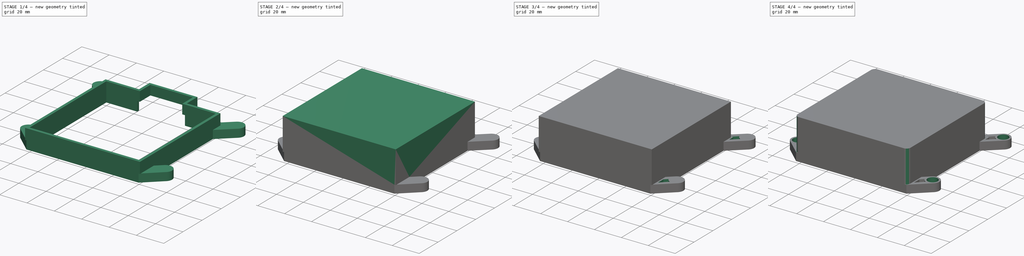
[diagram: build sequence overview — one tinted view per stage of 4, left to right]
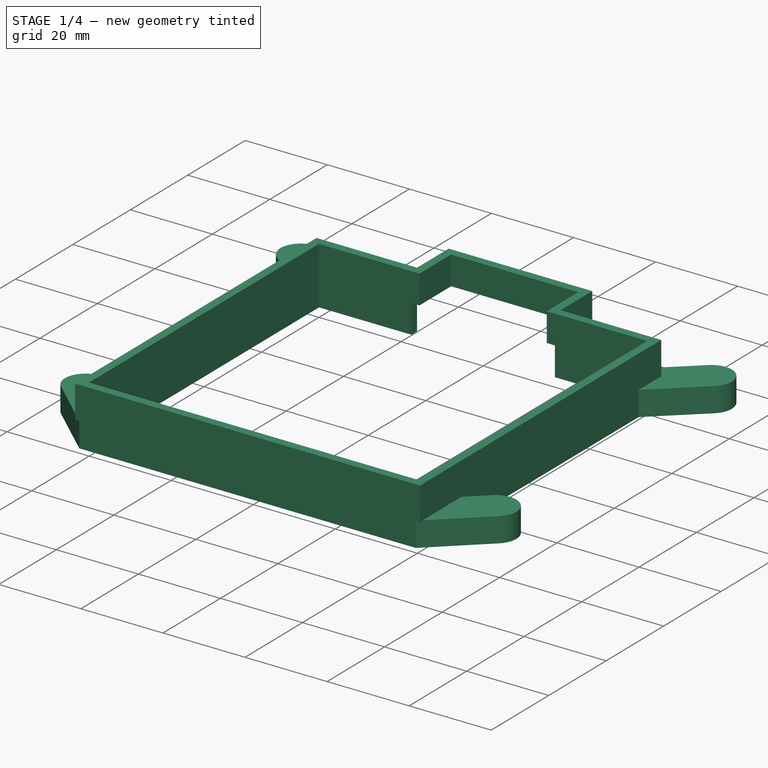
[diagram: stage 1 of 4 — iso view after this stage's code; geometry added in this stage tinted green]
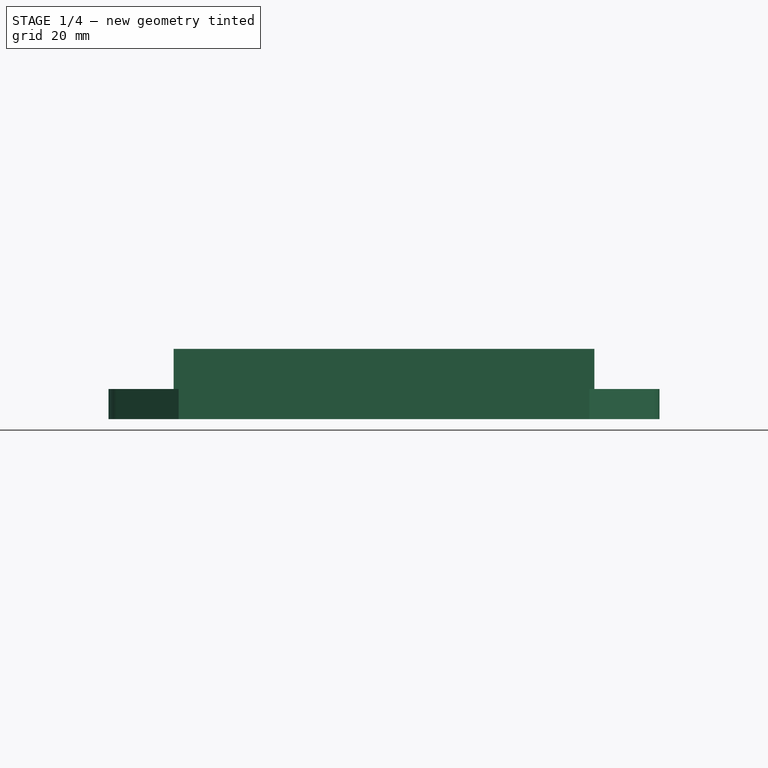
[diagram: stage 1 of 4 — front view after this stage's code; geometry added in this stage tinted green]
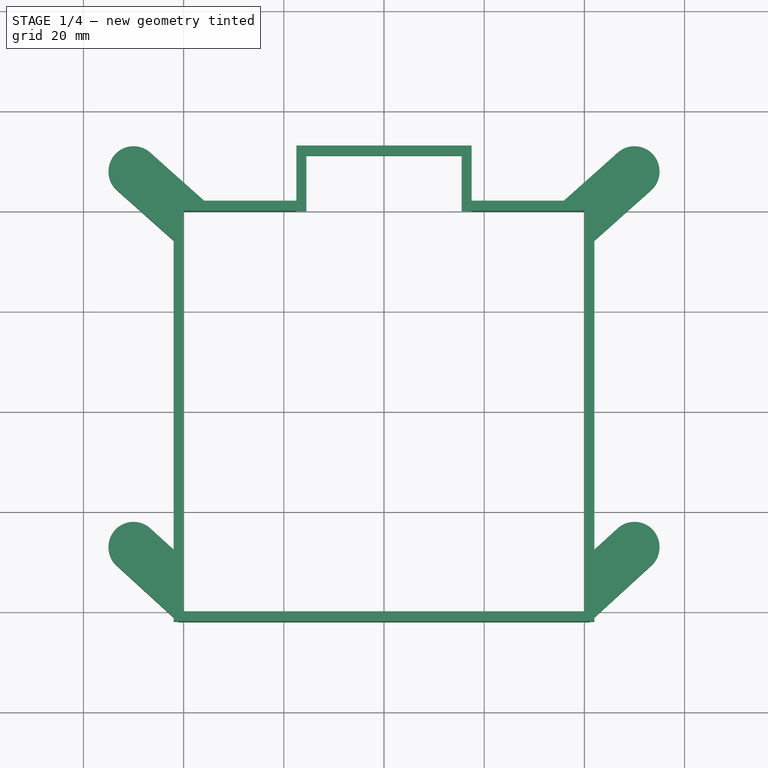
[diagram: stage 1 of 4 — top view after this stage's code; geometry added in this stage tinted green]
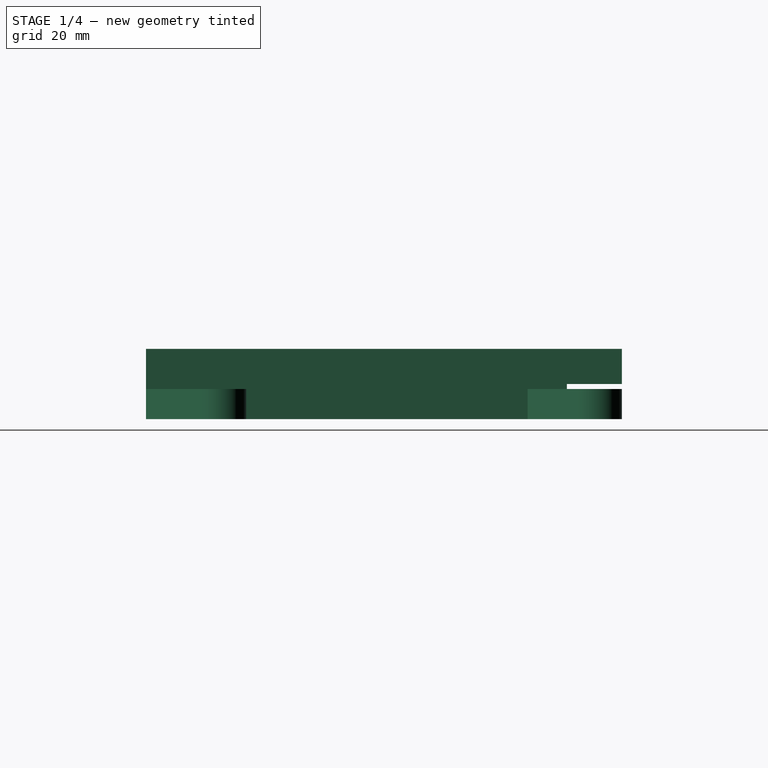
[diagram: stage 1 of 4 — right view after this stage's code; geometry added in this stage tinted green]
FCSTD DOCUMENT  (FreeCAD 1.1R44227 +322 (Git))
Label: cover_v2
License: All rights reserved
LicenseURL: https://en.wikipedia.org/wiki/All_rights_reserved
objects: Sketcher::SketchObject×10, PartDesign::Pad×6, PartDesign::Pocket×3, PartDesign::Hole×1, App::Point×1, PartDesign::Fillet×1, PartDesign::Body×1
note: 54 computed .brp shape members not serialized (recipe doc carries the construction recipe); baked Part::Feature solids carry a one-line shape summary decoded from their .brp

FEATURE [Sketcher::SketchObject] Sketch112
  ArcFitTolerance = 0
  AttachmentSupport = -> [XY_Plane]
  ExternalTypes = [0]
  FullyConstrained = true
  MakeInternals = false
  MapMode = 5
  sketch-geometry (30):
    g0: LineSegment [constr] StartX=-40 StartY=40 StartZ=0 EndX=40 EndY=40 EndZ=0
    g1: LineSegment StartX=-40 StartY=40 StartZ=0 EndX=-40 EndY=-40 EndZ=0
    g2: LineSegment StartX=-40 StartY=-40 StartZ=0 EndX=40 EndY=-40 EndZ=0
    g3: LineSegment StartX=40 StartY=40 StartZ=0 EndX=40 EndY=-40 EndZ=0
    g4: LineSegment [constr] StartX=-35.7645 StartY=42 StartZ=0 EndX=35.7645 EndY=42 EndZ=0
    g5: LineSegment StartX=42 StartY=34.1618 StartZ=0 EndX=42 EndY=-27.5382 EndZ=0
    g6: LineSegment StartX=41 StartY=-42 StartZ=0 EndX=-41 EndY=-42 EndZ=0
    g7: LineSegment StartX=-42 StartY=-27.5382 StartZ=0 EndX=-42 EndY=34.1618 EndZ=0
    g8: GeomPoint [constr] X=50 Y=48 Z=0
    g9: GeomPoint [constr] X=-50 Y=48 Z=0
    g10: GeomPoint [constr] X=-50 Y=-27 Z=0
    g11: GeomPoint [constr] X=50 Y=-27 Z=0
    g12: ArcOfCircle CenterX=50 CenterY=48 CenterZ=0 NormalX=0 NormalY=0 NormalZ=1 AngleXU=0 Radius=5 StartAngle=5.44087 EndAngle=8.58246
    g13: ArcOfCircle CenterX=-50 CenterY=48 CenterZ=0 NormalX=0 NormalY=0 NormalZ=1 AngleXU=0 Radius=5 StartAngle=0.842315 EndAngle=3.98391
    g14: ArcOfCircle CenterX=-50 CenterY=-27 CenterZ=0 NormalX=0 NormalY=0 NormalZ=1 AngleXU=0 Radius=5 StartAngle=0.830293 EndAngle=3.97189
    g15: ArcOfCircle CenterX=50 CenterY=-27 CenterZ=0 NormalX=0 NormalY=0 NormalZ=1 AngleXU=0 Radius=5 StartAngle=5.45289 EndAngle=8.59448
    g16: LineSegment StartX=-53.3733 StartY=-30.6906 StartZ=0 EndX=-41 EndY=-42 EndZ=0
    g17: LineSegment StartX=41 StartY=-42 StartZ=0 EndX=53.3733 EndY=-30.6906 EndZ=0
    g18: LineSegment StartX=46.6713 StartY=51.7309 StartZ=0 EndX=35.7645 EndY=42 EndZ=0
    g19: LineSegment StartX=-35.7645 StartY=42 StartZ=0 EndX=-46.6713 EndY=51.7309 EndZ=0
    g20: LineSegment StartX=42 StartY=34.1618 StartZ=0 EndX=53.3287 EndY=44.2691 EndZ=0
    g21: LineSegment StartX=-42 StartY=34.1618 StartZ=0 EndX=-53.3287 EndY=44.2691 EndZ=0
    g22: LineSegment StartX=-46.6267 StartY=-23.3094 StartZ=0 EndX=-42 EndY=-27.5382 EndZ=0
    g23: LineSegment StartX=46.6267 StartY=-23.3094 StartZ=0 EndX=42 EndY=-27.5382 EndZ=0
    g24: LineSegment StartX=35.7645 StartY=42 StartZ=0 EndX=17.5 EndY=42 EndZ=0
    g25: LineSegment StartX=40 StartY=40 StartZ=0 EndX=17.5 EndY=40 EndZ=0
    g26: LineSegment StartX=-40 StartY=40 StartZ=0 EndX=-17.5 EndY=40 EndZ=0
    g27: LineSegment StartX=-35.7645 StartY=42 StartZ=0 EndX=-17.5 EndY=42 EndZ=0
    g28: LineSegment StartX=-17.5 StartY=42 StartZ=0 EndX=-17.5 EndY=40 EndZ=0
    g29: LineSegment StartX=17.5 StartY=42 StartZ=0 EndX=17.5 EndY=40 EndZ=0
  constraints (75):
    c: Horizontal(g0)
    c: DistanceX(g0,g0) = 80
    c: Coincident(g1,g0)
    c: Vertical(g1)
    c: DistanceY(g1,g1) = 80
    c: Distance(g-1,g0) = 40
    c: Distance(g-1,g1) = 40
    c: Coincident(g2,g1)
    c: Horizontal(g2)
    c: Coincident(g3,g0)
    c: Coincident(g3,g2)
    c: Vertical(g3)
    c: Horizontal(g4)
    c: Vertical(g5)
    c: Vertical(g7)
    c: DistanceY(g6,g4) = 84
    c: Distance(g4,g0) = 2
    c: DistanceX(g-2,g11) = 50
    c: DistanceY(g-1,g10) = -27
    c: DistanceX(g-2,g10) = -50
    c: DistanceY(g-1,g9) = 48
    c: DistanceX(g-2,g9) = -50
    c: DistanceY(g-1,g8) = 48
    c: DistanceX(g-2,g8) = 50
    c: Coincident(g12,g8)
    c: Diameter(g12) = 10
    c: DistanceY(g-1,g11) = -27
    c: Coincident(g13,g9)
    c: Coincident(g14,g10)
    c: Coincident(g15,g11)
    c: Equal(g12,g13)
    c: Equal(g13,g14)
    c: Equal(g14,g15)
    c: Coincident(g16,g6)
    c: Coincident(g17,g6)
    c: Coincident(g18,g4)
    c: Coincident(g19,g4)
    c: Parallel(g18,g20)
    c: Parallel(g21,g19)
    c: Parallel(g22,g16)
    c: Parallel(g23,g17)
    c: Coincident(g7,g21)
    c: Coincident(g5,g20)
    c: Coincident(g5,g23)
    c: Coincident(g7,g22)
    c: DistanceX(g6,g6) = 82
    c: Distance(g-1,g5) = 42
    c: DistanceY(g5,g5) = 61.7
    c: Distance(g-1,g7) = 42
    c: Tangent(g13,g21) = 1.5708
    c: Tangent(g13,g19) = -1.5708
    c: Tangent(g12,g18) = -1.5708
    c: Tangent(g12,g20) = -1.5708
    c: Tangent(g15,g23) = -1.5708
    c: Tangent(g15,g17) = -1.5708
    c: Tangent(g14,g16) = -1.5708
    c: Tangent(g14,g22) = 1.5708
    c: Coincident(g24,g4)
    c: PointOnObject(g24,g4)
    c: Coincident(g25,g0)
    c: PointOnObject(g25,g0)
    c: Coincident(g26,g0)
    c: PointOnObject(g26,g0)
    c: Coincident(g27,g4)
    c: PointOnObject(g27,g4)
    c: Distance(g7,g7) = 61.7
    c: Coincident(g28,g27)
    c: Coincident(g28,g26)
    c: Vertical(g28)
    c: Distance(g27,g-2) = 17.5
    c: Coincident(g29,g24)
    c: Coincident(g29,g25)
    c: Vertical(g29)
    c: Distance(g24,g-2) = 17.5
    c: Symmetric(g6,g6,g-2)
FEATURE [PartDesign::Pad] Pad
  Direction = (0,0,1)
  Length = 6
  Length2 = 10
  Profile = -> Sketch112
  ReferenceAxis = -> Sketch112 [N_Axis]
  Refine = true
  SideType = 0
  Suppressed = false
  Type = 0
  Type2 = 0
FEATURE [Sketcher::SketchObject] Sketch113
  ArcFitTolerance = 0
  AttachmentSupport = -> [Pad]
  ExternalTypes = [0]
  FullyConstrained = true
  MakeInternals = false
  MapMode = 5
  Placement = pos=(0,0,6) rot=(0,0,1;0rad)
  sketch-geometry (12):
    g0: LineSegment StartX=-40 StartY=40 StartZ=0 EndX=-40 EndY=-40 EndZ=0
    g1: LineSegment StartX=-40 StartY=-40 StartZ=0 EndX=40 EndY=-40 EndZ=0
    g2: LineSegment StartX=40 StartY=40 StartZ=0 EndX=40 EndY=-40 EndZ=0
    g3: LineSegment StartX=42 StartY=42 StartZ=0 EndX=42 EndY=-42 EndZ=0
    g4: LineSegment StartX=42 StartY=-42 StartZ=0 EndX=-42 EndY=-42 EndZ=0
    g5: LineSegment StartX=-42 StartY=-42 StartZ=0 EndX=-42 EndY=42 EndZ=0
    g6: LineSegment StartX=-42 StartY=42 StartZ=0 EndX=-17.5 EndY=42 EndZ=0
    g7: LineSegment StartX=17.5 StartY=42 StartZ=0 EndX=17.5 EndY=40 EndZ=0
    g8: LineSegment StartX=-17.5 StartY=42 StartZ=0 EndX=-17.5 EndY=40 EndZ=0
    g9: LineSegment StartX=-17.5 StartY=40 StartZ=0 EndX=-40 EndY=40 EndZ=0
    g10: LineSegment StartX=17.5 StartY=42 StartZ=0 EndX=42 EndY=42 EndZ=0
    g11: LineSegment StartX=17.5 StartY=40 StartZ=0 EndX=40 EndY=40 EndZ=0
  constraints (36):
    c: DistanceX(g0,g2) = 80
    c: Vertical(g0)
    c: DistanceY(g0,g0) = 80
    c: Coincident(g1,g0)
    c: Horizontal(g1)
    c: Coincident(g2,g1)
    c: Vertical(g2)
    c: Vertical(g3)
    c: Horizontal(g4)
    c: Vertical(g5)
    c: Distance(g4,g2) = 2
    c: Coincident(g3,g10)
    c: Coincident(g3,g4)
    c: Coincident(g5,g6)
    c: Coincident(g4,g5)
    c: Coincident(g9,g0)
    c: Distance(g-1,g1) = 40
    c: Distance(g1,g4) = 2
    c: Distance(g0,g6) = 2
    c: Horizontal(g6)
    c: PointOnObject(g7,g10)
    c: Vertical(g7)
    c: PointOnObject(g8,g9)
    c: Vertical(g8)
    c: PointOnObject(g9,g8)
    c: Coincident(g6,g8)
    c: PointOnObject(g10,g7)
    c: Distance(g6,g-2) = 17.5
    c: Distance(g7,g-2) = 17.5
    c: Coincident(g11,g7)
    c: Coincident(g11,g2)
    c: Horizontal(g11)
    c: Horizontal(g10)
    c: Symmetric(g5,g3,g-2)
    c: Symmetric(g0,g2,g-2)
    c: Horizontal(g9)
FEATURE [PartDesign::Pad] Pad001
  BaseFeature = -> Pad
  Direction = (0,0,1)
  Length = 1
  Length2 = 10
  Profile = -> Sketch113
  ReferenceAxis = -> Sketch113 [N_Axis]
  Refine = true
  SideType = 0
  Suppressed = false
  Type = 0
  Type2 = 0
FEATURE [Sketcher::SketchObject] Sketch114
  ArcFitTolerance = 0
  AttachmentSupport = -> [Pad001]
  ExternalTypes = [0]
  FullyConstrained = true
  MakeInternals = false
  MapMode = 5
  Placement = pos=(0,0,7) rot=(0,0,1;0rad)
  sketch-geometry (18):
    g0: LineSegment [constr] StartX=-40 StartY=40 StartZ=0 EndX=40 EndY=40 EndZ=0
    g1: LineSegment StartX=-40 StartY=40 StartZ=0 EndX=-40 EndY=-40 EndZ=0
    g2: LineSegment StartX=-40 StartY=-40 StartZ=0 EndX=40 EndY=-40 EndZ=0
    g3: LineSegment StartX=40 StartY=40 StartZ=0 EndX=40 EndY=-40 EndZ=0
    g4: LineSegment [constr] StartX=-42 StartY=42 StartZ=0 EndX=42 EndY=42 EndZ=0
    g5: LineSegment StartX=42 StartY=42 StartZ=0 EndX=42 EndY=-42 EndZ=0
    g6: LineSegment StartX=42 StartY=-42 StartZ=0 EndX=-42 EndY=-42 EndZ=0
    g7: LineSegment StartX=-42 StartY=-42 StartZ=0 EndX=-42 EndY=42 EndZ=0
    g8: LineSegment StartX=42 StartY=42 StartZ=0 EndX=17.5 EndY=42 EndZ=0
    g9: LineSegment StartX=17.5 StartY=53 StartZ=0 EndX=17.5 EndY=42 EndZ=0
    g10: LineSegment StartX=40 StartY=40 StartZ=0 EndX=15.5 EndY=40 EndZ=0
    g11: LineSegment StartX=15.5 StartY=40 StartZ=0 EndX=15.5 EndY=51 EndZ=0
    g12: LineSegment StartX=15.5 StartY=51 StartZ=0 EndX=-15.5 EndY=51 EndZ=0
    g13: LineSegment StartX=17.5 StartY=53 StartZ=0 EndX=-17.5 EndY=53 EndZ=0
    g14: LineSegment StartX=-40 StartY=40 StartZ=0 EndX=-15.5 EndY=40 EndZ=0
    g15: LineSegment StartX=-15.5 StartY=40 StartZ=0 EndX=-15.5 EndY=51 EndZ=0
    g16: LineSegment StartX=-17.5 StartY=53 StartZ=0 EndX=-17.5 EndY=42 EndZ=0
    g17: LineSegment StartX=-42 StartY=42 StartZ=0 EndX=-17.5 EndY=42 EndZ=0
  constraints (51):
    c: Horizontal(g0)
    c: DistanceX(g0,g0) = 80
    c: Coincident(g1,g0)
    c: Vertical(g1)
    c: DistanceY(g1,g1) = 80
    c: Distance(g-1,g0) = 40
    c: Distance(g-1,g1) = 40
    c: Coincident(g2,g1)
    c: Horizontal(g2)
    c: Coincident(g3,g0)
    c: Coincident(g3,g2)
    c: Vertical(g3)
    c: Horizontal(g4)
    c: Vertical(g5)
    c: Horizontal(g6)
    c: Vertical(g7)
    c: DistanceY(g6,g4) = 84
    c: Distance(g6,g3) = 2
    c: Distance(g4,g0) = 2
    c: Distance(g-1,g7) = 42
    c: Coincident(g8,g4)
    c: PointOnObject(g8,g4)
    c: Vertical(g9)
    c: Distance(g-1,g9) = 17.5
    c: Distance(g9,g4) = 11
    c: Coincident(g10,g0)
    c: PointOnObject(g10,g0)
    c: DistanceX(g10,g10) = 24.5
    c: Coincident(g11,g10)
    c: Vertical(g11)
    c: Coincident(g12,g11)
    c: Horizontal(g12)
    c: Coincident(g13,g9)
    c: Horizontal(g13)
    c: Coincident(g14,g0)
    c: PointOnObject(g14,g0)
    c: Coincident(g15,g14)
    c: Coincident(g15,g12)
    c: Vertical(g15)
    c: DistanceY(g15,g15) = 11
    c: DistanceX(g14,g14) = 24.5
    c: Coincident(g16,g13)
    c: Vertical(g16)
    c: Coincident(g17,g4)
    c: Symmetric(g16,g9,g-2)
    c: Coincident(g4,g5)
    c: Coincident(g4,g7)
    c: Coincident(g6,g7)
    c: Coincident(g5,g6)
    c: Coincident(g17,g16)
    c: Coincident(g9,g8)
FEATURE [PartDesign::Pad] Pad002
  BaseFeature = -> Pad001
  Direction = (0,0,1)
  Length = 7
  Length2 = 10
  Profile = -> Sketch114
  ReferenceAxis = -> Sketch114 [N_Axis]
  Refine = true
  SideType = 0
  Suppressed = false
  Type = 0
  Type2 = 0
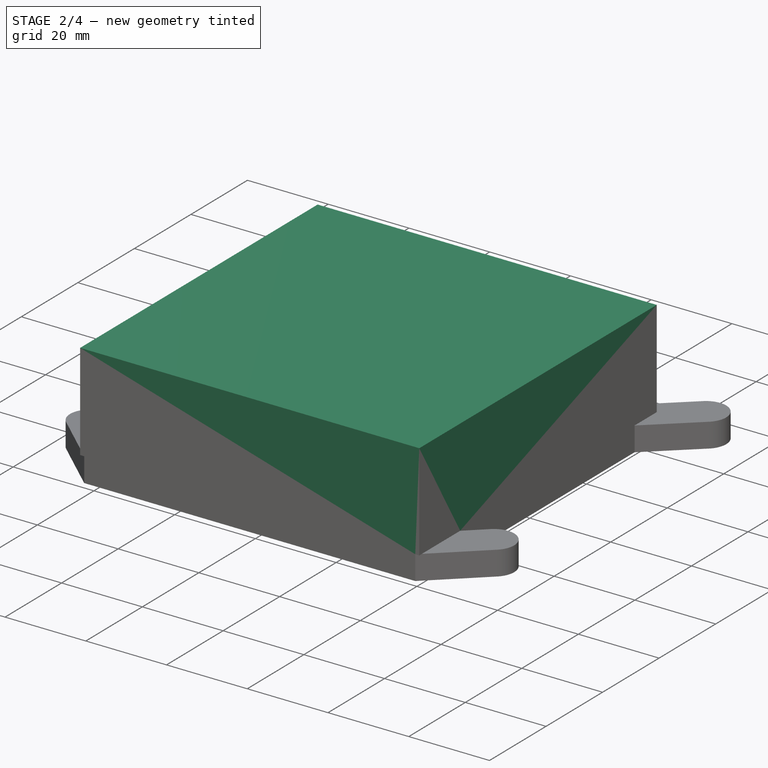
[diagram: stage 2 of 4 — iso view after this stage's code; geometry added in this stage tinted green]
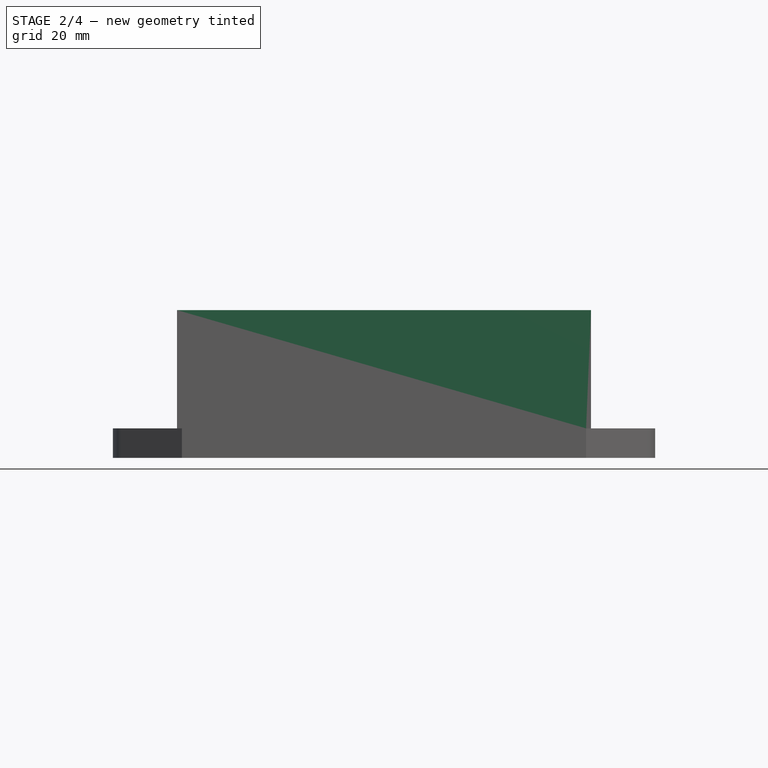
[diagram: stage 2 of 4 — front view after this stage's code; geometry added in this stage tinted green]
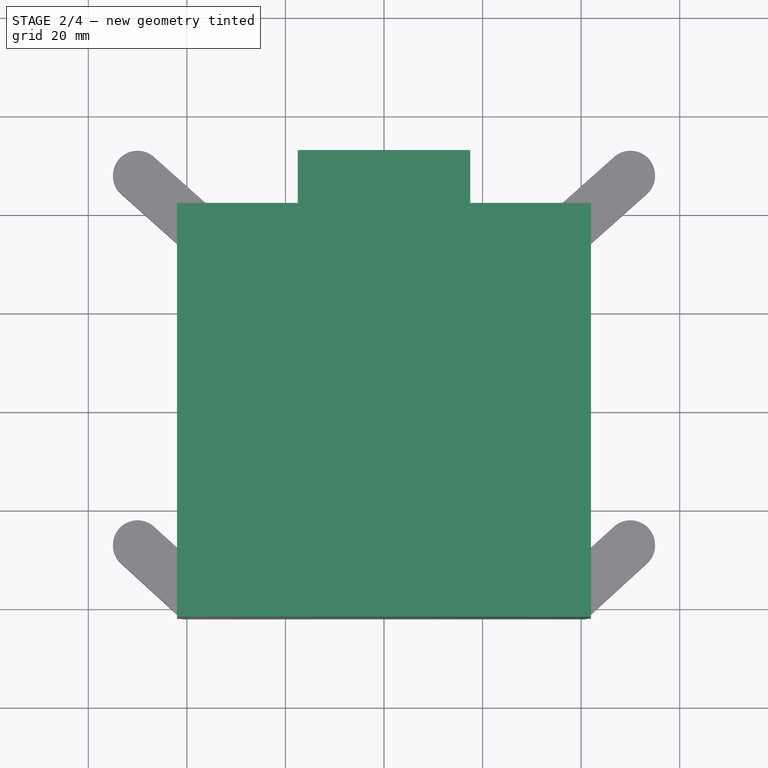
[diagram: stage 2 of 4 — top view after this stage's code; geometry added in this stage tinted green]
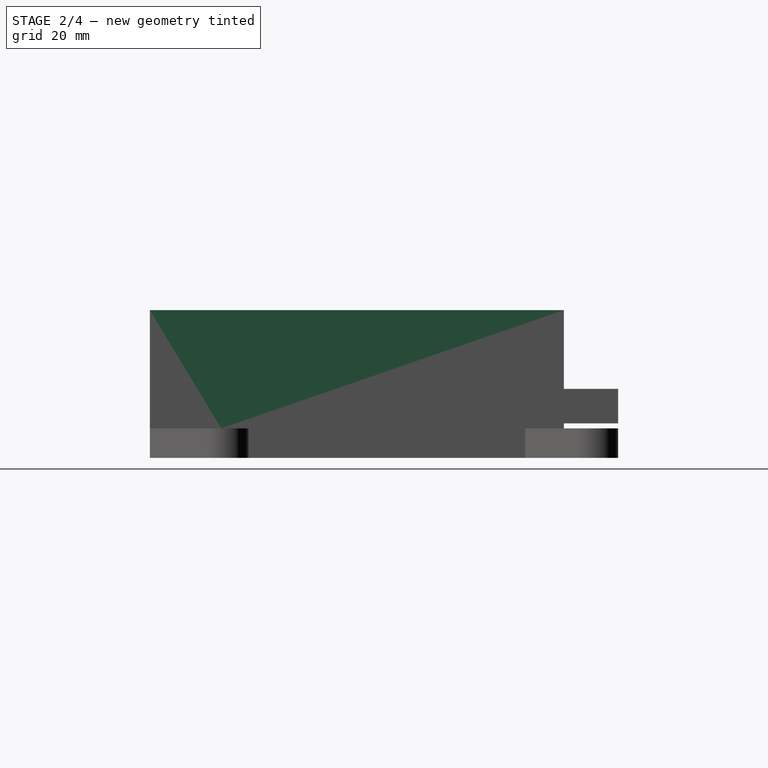
[diagram: stage 2 of 4 — right view after this stage's code; geometry added in this stage tinted green]
FEATURE [Sketcher::SketchObject] Sketch115
  ArcFitTolerance = 1e-06
  AttachmentSupport = -> [Pad002]
  ExternalTypes = [0]
  FullyConstrained = true
  MakeInternals = false
  MapMode = 5
  Placement = pos=(0,0,14) rot=(0,0,1;0rad)
  sketch-geometry (4):
    g0: LineSegment StartX=-17.5 StartY=53 StartZ=0 EndX=-17.5 EndY=40 EndZ=0
    g1: LineSegment StartX=-17.5 StartY=40 StartZ=0 EndX=17.5 EndY=40 EndZ=0
    g2: LineSegment StartX=17.5 StartY=40 StartZ=0 EndX=17.5 EndY=53 EndZ=0
    g3: LineSegment StartX=17.5 StartY=53 StartZ=0 EndX=-17.5 EndY=53 EndZ=0
  constraints (12):
    c: Coincident(g0,g1)
    c: Coincident(g1,g2)
    c: Coincident(g2,g3)
    c: Coincident(g3,g0)
    c: Vertical(g0)
    c: Vertical(g2)
    c: Horizontal(g1)
    c: Horizontal(g3)
    c: Distance(g-2,g0) = 17.5
    c: Distance(g-1,g1) = 40
    c: DistanceX(g1,g1) = 35
    c: DistanceY(g2,g2) = 13
FEATURE [PartDesign::Pad] Pad003
  BaseFeature = -> Pad002
  Direction = (0,0,1)
  Length = 2
  Length2 = 10
  Profile = -> Sketch115
  ReferenceAxis = -> Sketch115 [N_Axis]
  Refine = true
  Reversed = true
  SideType = 0
  Suppressed = false
  Type = 0
  Type2 = 0
FEATURE [Sketcher::SketchObject] Sketch111
  ArcFitTolerance = 0
  AttachmentSupport = -> [Pad003]
  ExternalTypes = [0]
  FullyConstrained = true
  MakeInternals = false
  MapMode = 5
  Placement = pos=(0,0,14) rot=(0,0,1;0rad)
  sketch-geometry (8):
    g0: LineSegment StartX=-40 StartY=40 StartZ=0 EndX=-40 EndY=-40 EndZ=0
    g1: LineSegment StartX=-40 StartY=-40 StartZ=0 EndX=40 EndY=-40 EndZ=0
    g2: LineSegment StartX=40 StartY=40 StartZ=0 EndX=40 EndY=-40 EndZ=0
    g3: LineSegment StartX=42 StartY=42 StartZ=0 EndX=42 EndY=-42 EndZ=0
    g4: LineSegment StartX=42 StartY=-42 StartZ=0 EndX=-42 EndY=-42 EndZ=0
    g5: LineSegment StartX=-42 StartY=-42 StartZ=0 EndX=-42 EndY=42 EndZ=0
    g6: LineSegment StartX=40 StartY=40 StartZ=0 EndX=-40 EndY=40 EndZ=0
    g7: LineSegment StartX=-42 StartY=42 StartZ=0 EndX=42 EndY=42 EndZ=0
  constraints (24):
    c: DistanceX(g0,g2) = 80
    c: Vertical(g0)
    c: DistanceY(g0,g0) = 80
    c: Distance(g-1,g0) = 40
    c: Coincident(g1,g0)
    c: Horizontal(g1)
    c: Coincident(g2,g1)
    c: Vertical(g2)
    c: Vertical(g3)
    c: Horizontal(g4)
    c: Vertical(g5)
    c: Distance(g4,g2) = 2
    c: Coincident(g3,g7)
    c: Coincident(g3,g4)
    c: Coincident(g5,g7)
    c: Coincident(g4,g5)
    c: Coincident(g6,g0)
    c: Distance(g-1,g1) = 40
    c: Coincident(g2,g6)
    c: Horizontal(g6)
    c: Distance(g1,g4) = 2
    c: Distance(g0,g7) = 2
    c: Distance(g0,g5) = 2
    c: Horizontal(g7)
FEATURE [PartDesign::Pad] Pad004
  BaseFeature = -> Pad003
  Direction = (0,0,1)
  Length = 14
  Length2 = 10
  Profile = -> Sketch111
  ReferenceAxis = -> Sketch111 [N_Axis]
  Refine = true
  SideType = 0
  Suppressed = false
  Type = 0
  Type2 = 0
FEATURE [Sketcher::SketchObject] Sketch116
  ArcFitTolerance = 0
  AttachmentSupport = -> [Pad004]
  ExternalTypes = [0]
  FullyConstrained = true
  MakeInternals = false
  MapMode = 5
  Placement = pos=(0,0,28) rot=(0,0,1;0rad)
  sketch-geometry (4):
    g0: LineSegment StartX=42 StartY=42 StartZ=0 EndX=42 EndY=-42 EndZ=0
    g1: LineSegment StartX=42 StartY=-42 StartZ=0 EndX=-42 EndY=-42 EndZ=0
    g2: LineSegment StartX=-42 StartY=-42 StartZ=0 EndX=-42 EndY=42 EndZ=0
    g3: LineSegment StartX=-42 StartY=42 StartZ=0 EndX=42 EndY=42 EndZ=0
  constraints (12):
    c: Vertical(g0)
    c: Horizontal(g1)
    c: Vertical(g2)
    c: Coincident(g0,g3)
    c: Coincident(g0,g1)
    c: Coincident(g2,g3)
    c: Coincident(g1,g2)
    c: Horizontal(g3)
    c: Distance(g-1,g3) = 42
    c: Distance(g-1,g2) = 42
    c: Distance(g0,g-2) = 42
    c: Distance(g0,g-1) = 42
FEATURE [PartDesign::Pad] Pad005
  BaseFeature = -> Pad004
  Direction = (0,0,1)
  Length = 2
  Length2 = 10
  Profile = -> Sketch116
  ReferenceAxis = -> Sketch116 [N_Axis]
  Refine = true
  SideType = 0
  Suppressed = false
  Type = 0
  Type2 = 0
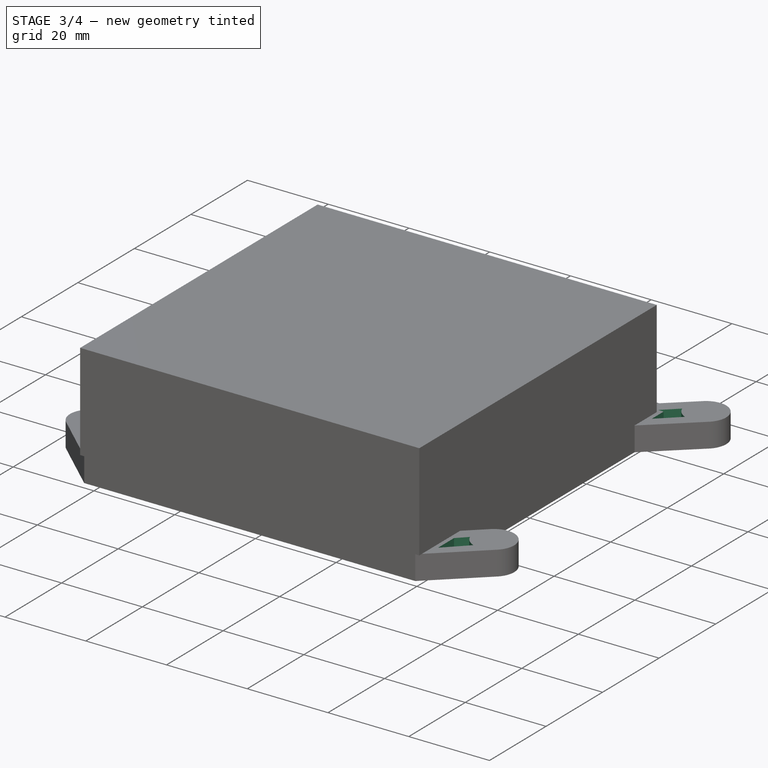
[diagram: stage 3 of 4 — iso view after this stage's code; geometry added in this stage tinted green]
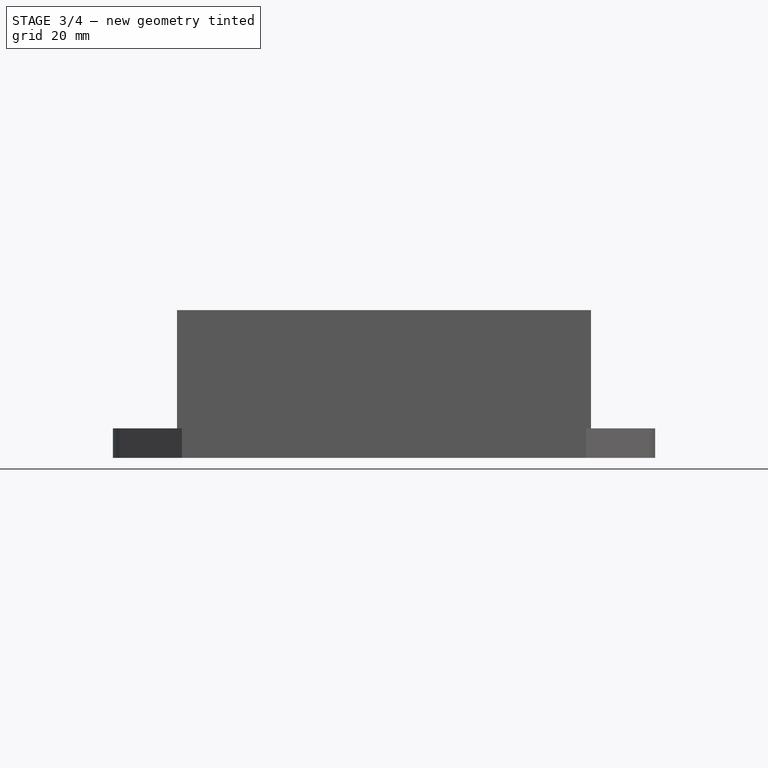
[diagram: stage 3 of 4 — front view after this stage's code; geometry added in this stage tinted green]
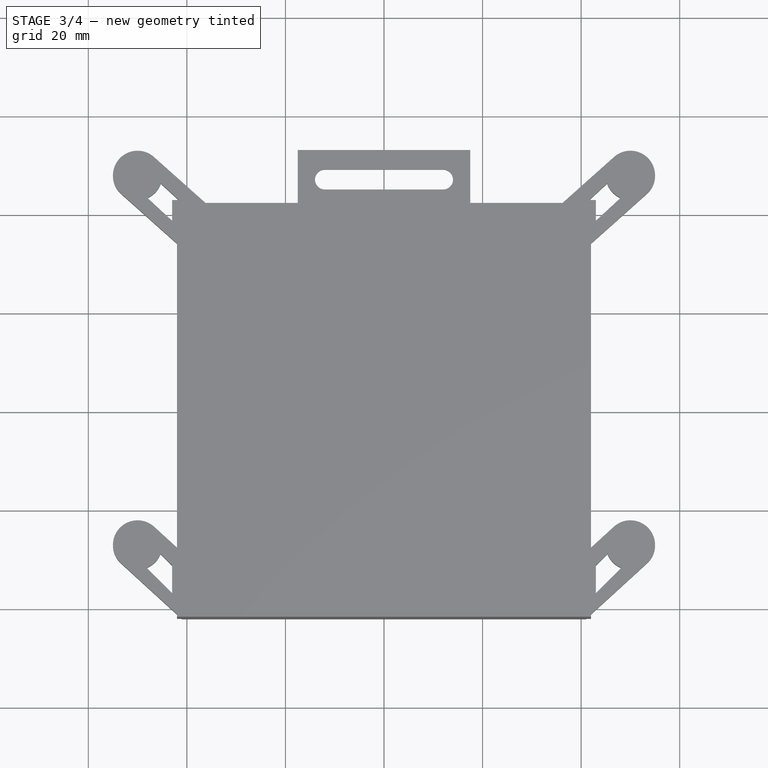
[diagram: stage 3 of 4 — top view after this stage's code; geometry added in this stage tinted green]
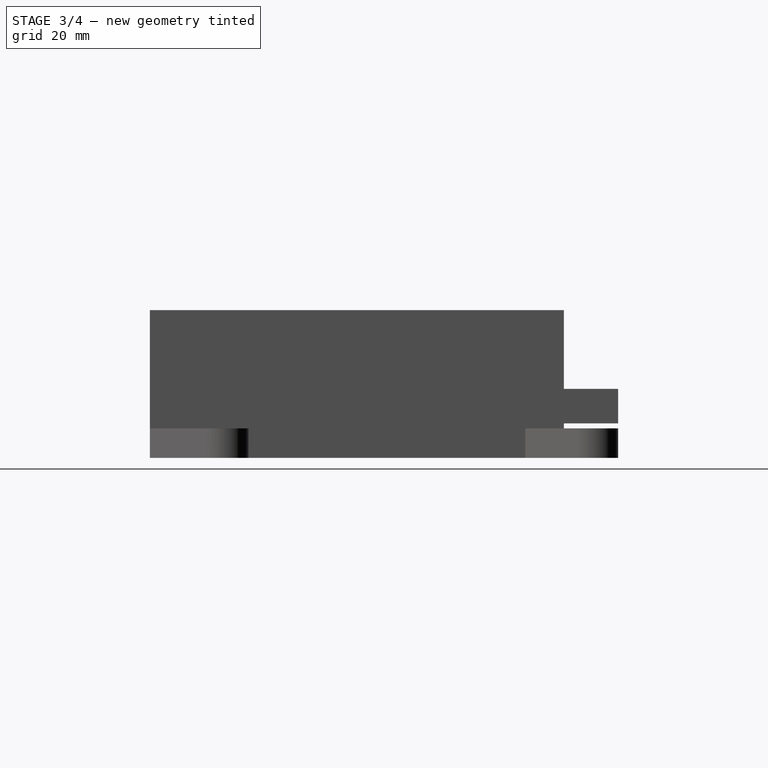
[diagram: stage 3 of 4 — right view after this stage's code; geometry added in this stage tinted green]
FEATURE [Sketcher::SketchObject] Sketch117
  ArcFitTolerance = 1e-06
  ExternalTypes = [0]
  FullyConstrained = true
  MakeInternals = false
  MapMode = 5
  Placement = pos=(0,0,12) rot=(1,0,0;3.14159rad)
  sketch-geometry (4):
    g0: ArcOfCircle CenterX=-12 CenterY=-47 CenterZ=0 NormalX=0 NormalY=0 NormalZ=1 AngleXU=0 Radius=2 StartAngle=1.5708 EndAngle=4.71239
    g1: ArcOfCircle CenterX=12 CenterY=-47 CenterZ=0 NormalX=0 NormalY=0 NormalZ=1 AngleXU=0 Radius=2 StartAngle=4.71239 EndAngle=7.85398
    g2: LineSegment StartX=-12 StartY=-45 StartZ=0 EndX=12 EndY=-45 EndZ=0
    g3: LineSegment StartX=-12 StartY=-49 StartZ=0 EndX=12 EndY=-49 EndZ=0
  constraints (9):
    c: Tangent(g0,g2) = 1.5708
    c: Tangent(g0,g3) = -1.5708
    c: Tangent(g1,g2) = 1.5708
    c: Tangent(g1,g3) = -1.5708
    c: Equal(g0,g1)
    c: DistanceX(g3,g3) = 24
    c: Symmetric(g0,g1,g-2)
    c: Radius(g0) = 2
    c: Distance(g0,g-1) = 47
FEATURE [PartDesign::Pocket] Pocket
  BaseFeature = -> Pad005
  Direction = (0,1e-16,1)
  Length = 5
  Length2 = 5
  Profile = -> Sketch117
  ReferenceAxis = -> Sketch117 [N_Axis]
  Refine = true
  SideType = 0
  Suppressed = false
  Type = 0
  Type2 = 0
FEATURE [Sketcher::SketchObject] Sketch119
  ArcFitTolerance = 0
  ExternalTypes = [0]
  FullyConstrained = true
  MakeInternals = false
  MapMode = 5
  sketch-geometry (58):
    g0: LineSegment [constr] StartX=-40 StartY=40 StartZ=0 EndX=40 EndY=40 EndZ=0
    g1: LineSegment [constr] StartX=-40 StartY=40 StartZ=0 EndX=-40 EndY=-40 EndZ=0
    g2: LineSegment [constr] StartX=-40 StartY=-40 StartZ=0 EndX=40 EndY=-40 EndZ=0
    g3: LineSegment [constr] StartX=40 StartY=40 StartZ=0 EndX=40 EndY=-40 EndZ=0
    g4: LineSegment [constr] StartX=-36.1406 StartY=42 StartZ=0 EndX=36.1406 EndY=42 EndZ=0
    g5: LineSegment [constr] StartX=42 StartY=33.7986 StartZ=0 EndX=42 EndY=-27.9014 EndZ=0
    g6: LineSegment [constr] StartX=42 StartY=-42 StartZ=0 EndX=-42 EndY=-42 EndZ=0
    g7: LineSegment [constr] StartX=-42 StartY=-27.9014 StartZ=0 EndX=-42 EndY=33.7986 EndZ=0
    g8: GeomPoint [constr] X=50 Y=48 Z=0
    g9: GeomPoint [constr] X=-50 Y=48 Z=0
    g10: GeomPoint [constr] X=-50 Y=-27 Z=0
    g11: GeomPoint [constr] X=50 Y=-27 Z=0
    g12: ArcOfCircle [constr] CenterX=50 CenterY=48 CenterZ=0 NormalX=0 NormalY=0 NormalZ=1 AngleXU=0 Radius=5 StartAngle=5.45839 EndAngle=8.59998
    g13: ArcOfCircle [constr] CenterX=-50 CenterY=48 CenterZ=0 NormalX=0 NormalY=0 NormalZ=1 AngleXU=0 Radius=5 StartAngle=0.824798 EndAngle=3.96639
    g14: ArcOfCircle [constr] CenterX=-50 CenterY=-27 CenterZ=0 NormalX=0 NormalY=0 NormalZ=1 AngleXU=0 Radius=5 StartAngle=0.78849 EndAngle=3.93008
    g15: ArcOfCircle [constr] CenterX=50 CenterY=-27 CenterZ=0 NormalX=0 NormalY=0 NormalZ=1 AngleXU=0 Radius=5 StartAngle=5.4947 EndAngle=8.63629
    g16: LineSegment [constr] StartX=-53.5246 StartY=-30.5464 StartZ=0 EndX=-42 EndY=-42 EndZ=0
    g17: LineSegment [constr] StartX=42 StartY=-42 StartZ=0 EndX=53.5246 EndY=-30.5464 EndZ=0
    g18: LineSegment [constr] StartX=46.6065 StartY=51.6721 StartZ=0 EndX=36.1406 EndY=42 EndZ=0
    g19: LineSegment [constr] StartX=-36.1406 StartY=42 StartZ=0 EndX=-46.6065 EndY=51.6721 EndZ=0
    g20: LineSegment [constr] StartX=42 StartY=33.7986 StartZ=0 EndX=53.3935 EndY=44.3279 EndZ=0
    g21: LineSegment [constr] StartX=-42 StartY=33.7986 StartZ=0 EndX=-53.3935 EndY=44.3279 EndZ=0
    g22: LineSegment [constr] StartX=-46.4754 StartY=-23.4536 StartZ=0 EndX=-42 EndY=-27.9014 EndZ=0
    g23: LineSegment [constr] StartX=46.4754 StartY=-23.4536 StartZ=0 EndX=42 EndY=-27.9014 EndZ=0
    g24: LineSegment [constr] StartX=36.1406 StartY=42 StartZ=0 EndX=17.5 EndY=42 EndZ=0
    g25: LineSegment [constr] StartX=40 StartY=40 StartZ=0 EndX=17.5 EndY=40 EndZ=0
    g26: LineSegment [constr] StartX=-40 StartY=40 StartZ=0 EndX=-17.5 EndY=40 EndZ=0
    g27: LineSegment [constr] StartX=-36.1406 StartY=42 StartZ=0 EndX=-17.5 EndY=42 EndZ=0
    g28: LineSegment [constr] StartX=-17.5 StartY=42 StartZ=0 EndX=-17.5 EndY=40 EndZ=0
    g29: LineSegment [constr] StartX=17.5 StartY=42 StartZ=0 EndX=17.5 EndY=40 EndZ=0
    g30: GeomPoint [constr] X=-50 Y=48 Z=0
    g31: GeomPoint [constr] X=-40 Y=40 Z=0
    g32: GeomPoint [constr] X=50 Y=48 Z=0
    g33: GeomPoint [constr] X=40 Y=40 Z=0
    g34: GeomPoint [constr] X=50 Y=-27 Z=0
    g35: LineSegment [constr] StartX=42 StartY=33.7986 StartZ=0 EndX=42 EndY=42 EndZ=0
    g36: LineSegment [constr] StartX=36.1406 StartY=42 StartZ=0 EndX=42 EndY=42 EndZ=0
    g37: LineSegment [constr] StartX=50 StartY=48 StartZ=0 EndX=42 EndY=40.6068 EndZ=0
    g38: LineSegment StartX=43 StartY=38.8077 StartZ=0 EndX=43 EndY=43 EndZ=0
    g39: LineSegment StartX=43 StartY=38.8077 StartZ=0 EndX=47.9919 EndY=43.421 EndZ=0
    g40: LineSegment StartX=43 StartY=43 StartZ=0 EndX=41.6428 EndY=43 EndZ=0
    g41: LineSegment StartX=41.6428 StartY=43 StartZ=0 EndX=45.2771 EndY=46.3586 EndZ=0
    g42: ArcOfCircle CenterX=50 CenterY=48 CenterZ=0 NormalX=0 NormalY=0 NormalZ=1 AngleXU=0 Radius=5 StartAngle=3.47607 EndAngle=4.29911
    g43: LineSegment StartX=-43 StartY=38.8077 StartZ=0 EndX=-43 EndY=43 EndZ=0
    g44: LineSegment StartX=-43 StartY=43 StartZ=0 EndX=-41.6428 EndY=43 EndZ=0
    g45: LineSegment StartX=-41.6428 StartY=43 StartZ=0 EndX=-45.2771 EndY=46.3586 EndZ=0
    g46: LineSegment StartX=-43 StartY=38.8077 StartZ=0 EndX=-47.9919 EndY=43.421 EndZ=0
    g47: ArcOfCircle CenterX=-50 CenterY=48 CenterZ=0 NormalX=0 NormalY=0 NormalZ=1 AngleXU=0 Radius=5 StartAngle=5.12567 EndAngle=5.9487
    g48: LineSegment StartX=-48.1595 StartY=-31.6489 StartZ=0 EndX=-43 EndY=-36.7766 EndZ=0
    g49: LineSegment StartX=-45.3398 StartY=-28.8118 StartZ=0 EndX=-43 EndY=-31.1371 EndZ=0
    g50: LineSegment StartX=-43 StartY=-31.1371 StartZ=0 EndX=-43 EndY=-36.7766 EndZ=0
    g51: LineSegment [constr] StartX=-42 StartY=-27.9014 StartZ=0 EndX=-42 EndY=-42 EndZ=0
    g52: ArcOfCircle CenterX=-50 CenterY=-27 CenterZ=0 NormalX=0 NormalY=0 NormalZ=1 AngleXU=0 Radius=5 StartAngle=5.08936 EndAngle=5.9124
    g53: LineSegment [constr] StartX=-50 StartY=-27 StartZ=0 EndX=-42 EndY=-34.9507 EndZ=0
    g54: LineSegment StartX=43 StartY=-31.1371 StartZ=0 EndX=43 EndY=-36.7766 EndZ=0
    g55: LineSegment StartX=43 StartY=-36.7766 StartZ=0 EndX=48.1595 EndY=-31.6489 EndZ=0
    g56: LineSegment StartX=43 StartY=-31.1371 StartZ=0 EndX=45.3398 EndY=-28.8118 EndZ=0
    g57: ArcOfCircle CenterX=50 CenterY=-27 CenterZ=0 NormalX=0 NormalY=0 NormalZ=1 AngleXU=0 Radius=5 StartAngle=3.51238 EndAngle=4.33542
  constraints (142):
    c: Horizontal(g0)
    c: DistanceX(g0,g0) = 80
    c: Coincident(g1,g0)
    c: Vertical(g1)
    c: DistanceY(g1,g1) = 80
    c: Distance(g-1,g0) = 40
    c: Distance(g-1,g1) = 40
    c: Coincident(g2,g1)
    c: Horizontal(g2)
    c: Coincident(g3,g0)
    c: Coincident(g3,g2)
    c: Vertical(g3)
    c: Horizontal(g4)
    c: Vertical(g5)
    c: Horizontal(g6)
    c: Vertical(g7)
    c: DistanceY(g6,g4) = 84
    c: Distance(g6,g3) = 2
    c: Distance(g4,g0) = 2
    c: DistanceX(g-2,g11) = 50
    c: DistanceY(g-1,g10) = -27
    c: DistanceX(g-2,g10) = -50
    c: DistanceY(g-1,g9) = 48
    c: DistanceX(g-2,g9) = -50
    c: DistanceY(g-1,g8) = 48
    c: DistanceX(g-2,g8) = 50
    c: Coincident(g12,g8)
    c: Diameter(g12) = 10
    c: DistanceY(g-1,g11) = -27
    c: Coincident(g13,g9)
    c: Coincident(g14,g10)
    c: Coincident(g15,g11)
    c: Equal(g12,g13)
    c: Equal(g13,g14)
    c: Equal(g14,g15)
    c: Coincident(g16,g6)
    c: Coincident(g17,g6)
    c: Coincident(g18,g4)
    c: Coincident(g19,g4)
    c: Parallel(g18,g20)
    c: Parallel(g21,g19)
    c: Parallel(g22,g16)
    c: Parallel(g23,g17)
    c: Coincident(g7,g21)
    c: Coincident(g5,g20)
    c: Coincident(g5,g23)
    c: Coincident(g7,g22)
    c: DistanceX(g6,g6) = 84
    c: Distance(g-1,g5) = 42
    c: DistanceY(g5,g5) = 61.7
    c: Distance(g-1,g7) = 42
    c: Tangent(g13,g21) = 1.5708
    c: Tangent(g13,g19) = -1.5708
    c: Tangent(g12,g18) = -1.5708
    c: Tangent(g12,g20) = -1.5708
    c: Tangent(g15,g23) = -1.5708
    c: Tangent(g15,g17) = -1.5708
    c: Tangent(g14,g16) = -1.5708
    c: Tangent(g14,g22) = 1.5708
    c: Coincident(g24,g4)
    c: PointOnObject(g24,g4)
    c: Coincident(g25,g0)
    c: PointOnObject(g25,g0)
    c: Coincident(g26,g0)
    c: PointOnObject(g26,g0)
    c: Coincident(g27,g4)
    c: PointOnObject(g27,g4)
    c: Distance(g7,g7) = 61.7
    c: Coincident(g28,g27)
    c: Coincident(g28,g26)
    c: Vertical(g28)
    c: Distance(g27,g-2) = 17.5
    c: Coincident(g29,g24)
    c: Coincident(g29,g25)
    c: Vertical(g29)
    c: Distance(g24,g-2) = 17.5
    c: Coincident(g30,g9)
    c: Coincident(g31,g0)
    c: Coincident(g32,g8)
    c: Coincident(g33,g0)
    c: Coincident(g34,g11)
    c: Coincident(g35,g5)
    c: Vertical(g35)
    c: Coincident(g36,g4)
    c: Horizontal(g36)
    c: Coincident(g36,g35)
    c: Coincident(g37,g8)
    c: PointOnObject(g37,g35)
    c: Parallel(g37,g20)
    c: Vertical(g38)
    c: Coincident(g39,g38)
    c: Coincident(g40,g38)
    c: Horizontal(g40)
    c: Coincident(g41,g40)
    c: Coincident(g42,g8)
    c: Coincident(g42,g41)
    c: Coincident(g42,g39)
    c: Parallel(g39,g20)
    c: Parallel(g41,g18)
    c: Equal(g42,g12)
    c: Distance(g41,g37) = 2
    c: Distance(g40,g4) = 1
    c: Distance(g38,g35) = 1
    c: Distance(g39,g37) = 2
    c: Coincident(g44,g43)
    c: Coincident(g45,g44)
    c: Coincident(g46,g43)
    c: Coincident(g47,g9)
    c: Coincident(g47,g45)
    c: Coincident(g47,g46)
    c: Parallel(g45,g19)
    c: Parallel(g46,g21)
    c: Symmetric(g43,g38,g-2)
    c: Symmetric(g44,g40,g-2)
    c: Equal(g47,g42)
    c: Symmetric(g43,g38,g-2)
    c: Coincident(g51,g7)
    c: Coincident(g51,g6)
    c: Parallel(g49,g22)
    c: Coincident(g50,g49)
    c: Parallel(g48,g16)
    c: Coincident(g48,g50)
    c: Coincident(g52,g10)
    c: Coincident(g52,g49)
    c: Coincident(g52,g48)
    c: Equal(g52,g14)
    c: Coincident(g53,g10)
    c: Parallel(g53,g16)
    c: Distance(g49,g53) = 2
    c: Distance(g48,g53) = 2
    c: Vertical(g50)
    c: Distance(g49,g51) = 1
    c: PointOnObject(g53,g51)
    c: Coincident(g55,g54)
    c: Coincident(g56,g54)
    c: Coincident(g57,g11)
    c: Coincident(g57,g56)
    c: Coincident(g57,g55)
    c: Symmetric(g54,g49,g-2)
    c: Symmetric(g54,g48,g-2)
    c: Symmetric(g56,g49,g-2)
    c: Parallel(g55,g17)
FEATURE [PartDesign::Pocket] Pocket001
  BaseFeature = -> Pocket
  Direction = (0,0,-1)
  Length = 6
  Length2 = 5
  Profile = -> Sketch119
  ReferenceAxis = -> Sketch119 [N_Axis]
  Refine = true
  Reversed = true
  SideType = 0
  Suppressed = false
  Type = 0
  Type2 = 0
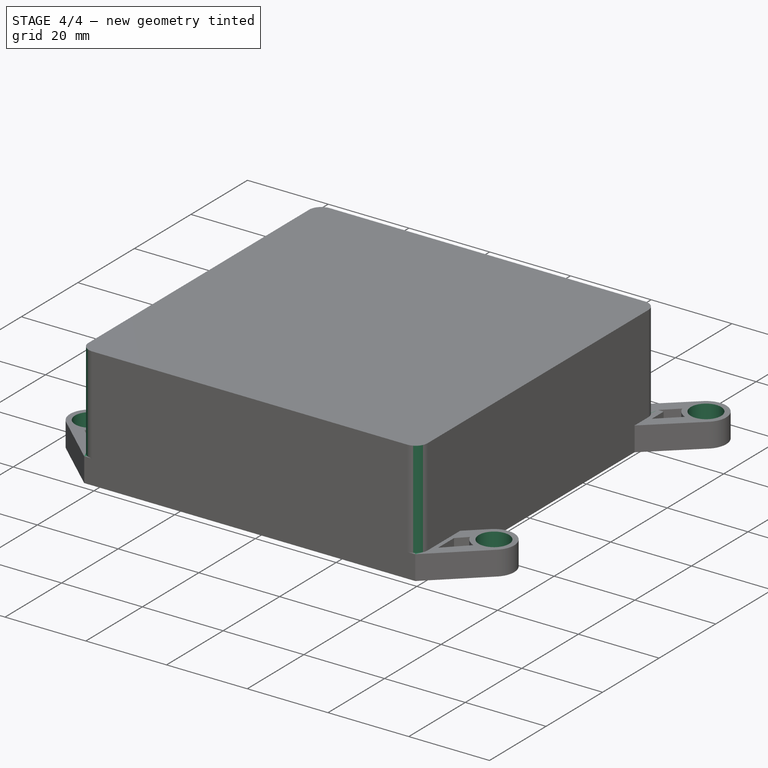
[diagram: stage 4 of 4 — iso view after this stage's code; geometry added in this stage tinted green]
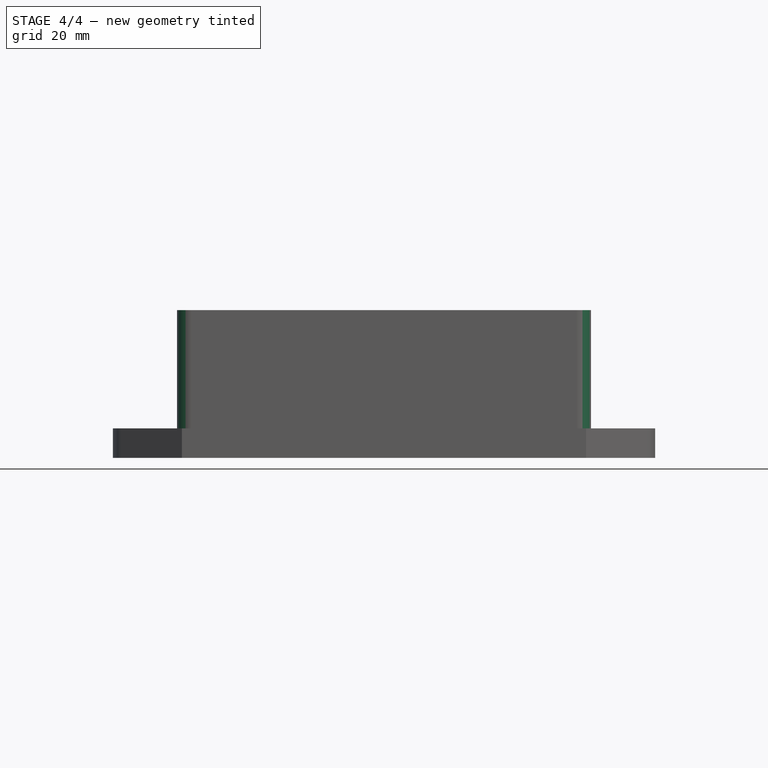
[diagram: stage 4 of 4 — front view after this stage's code; geometry added in this stage tinted green]
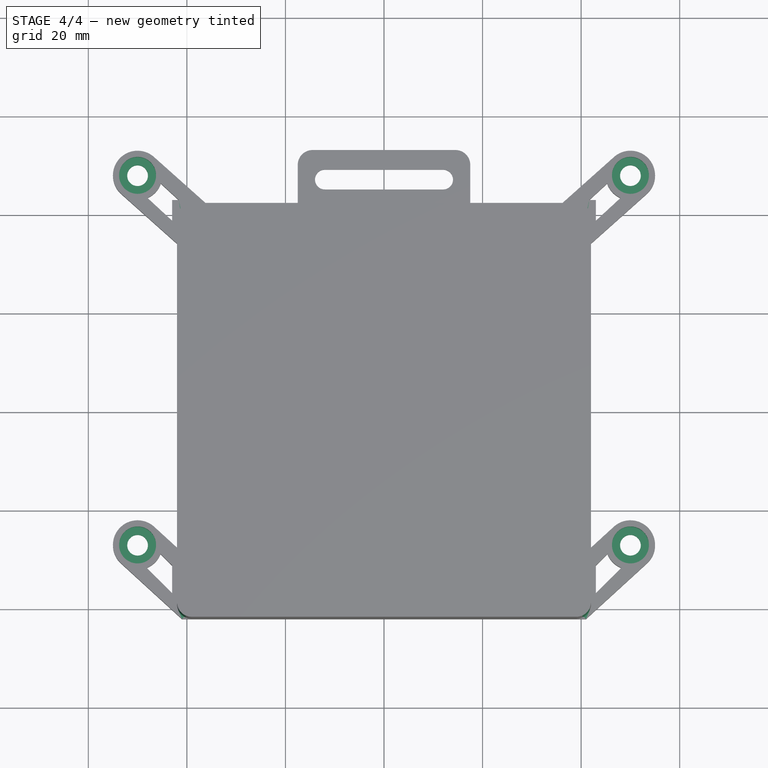
[diagram: stage 4 of 4 — top view after this stage's code; geometry added in this stage tinted green]
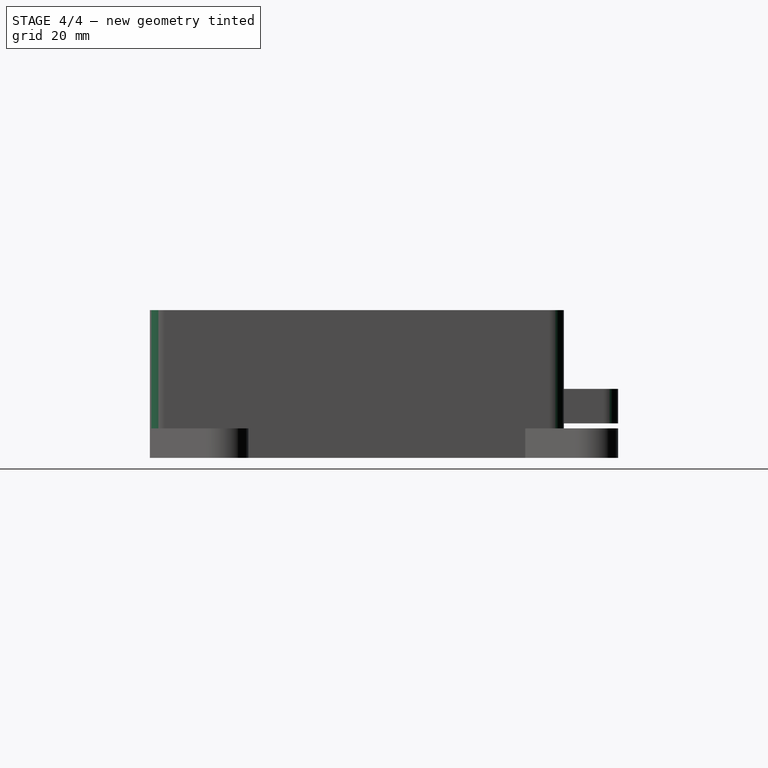
[diagram: stage 4 of 4 — right view after this stage's code; geometry added in this stage tinted green]
FEATURE [Sketcher::SketchObject] Sketch120
  ArcFitTolerance = 0
  AttachmentSupport = -> [Pocket001]
  ExternalTypes = [0]
  FullyConstrained = true
  MakeInternals = false
  MapMode = 5
  Placement = pos=(0,0,6) rot=(0,0,1;0rad)
  sketch-geometry (42):
    g0: LineSegment [constr] StartX=-40 StartY=40 StartZ=0 EndX=40 EndY=40 EndZ=0
    g1: LineSegment [constr] StartX=-40 StartY=40 StartZ=0 EndX=-40 EndY=-40 EndZ=0
    g2: LineSegment [constr] StartX=-40 StartY=-40 StartZ=0 EndX=40 EndY=-40 EndZ=0
    g3: LineSegment [constr] StartX=40 StartY=40 StartZ=0 EndX=40 EndY=-40 EndZ=0
    g4: LineSegment [constr] StartX=-36.1406 StartY=42 StartZ=0 EndX=36.1406 EndY=42 EndZ=0
    g5: LineSegment [constr] StartX=42 StartY=33.7986 StartZ=0 EndX=42 EndY=-27.9014 EndZ=0
    g6: LineSegment [constr] StartX=42 StartY=-42 StartZ=0 EndX=-42 EndY=-42 EndZ=0
    g7: LineSegment [constr] StartX=-42 StartY=-27.9014 StartZ=0 EndX=-42 EndY=33.7986 EndZ=0
    g8: GeomPoint [constr] X=50 Y=48 Z=0
    g9: GeomPoint [constr] X=-50 Y=48 Z=0
    g10: GeomPoint [constr] X=-50 Y=-27 Z=0
    g11: GeomPoint [constr] X=50 Y=-27 Z=0
    g12: ArcOfCircle [constr] CenterX=50 CenterY=48 CenterZ=0 NormalX=0 NormalY=0 NormalZ=1 AngleXU=0 Radius=5 StartAngle=5.45839 EndAngle=8.59998
    g13: ArcOfCircle [constr] CenterX=-50 CenterY=48 CenterZ=0 NormalX=0 NormalY=0 NormalZ=1 AngleXU=0 Radius=5 StartAngle=0.824798 EndAngle=3.96639
    g14: ArcOfCircle [constr] CenterX=-50 CenterY=-27 CenterZ=0 NormalX=0 NormalY=0 NormalZ=1 AngleXU=0 Radius=5 StartAngle=0.78849 EndAngle=3.93008
    g15: ArcOfCircle [constr] CenterX=50 CenterY=-27 CenterZ=0 NormalX=0 NormalY=0 NormalZ=1 AngleXU=0 Radius=5 StartAngle=5.4947 EndAngle=8.63629
    g16: LineSegment [constr] StartX=-53.5246 StartY=-30.5464 StartZ=0 EndX=-42 EndY=-42 EndZ=0
    g17: LineSegment [constr] StartX=42 StartY=-42 StartZ=0 EndX=53.5246 EndY=-30.5464 EndZ=0
    g18: LineSegment [constr] StartX=46.6065 StartY=51.6721 StartZ=0 EndX=36.1406 EndY=42 EndZ=0
    g19: LineSegment [constr] StartX=-36.1406 StartY=42 StartZ=0 EndX=-46.6065 EndY=51.6721 EndZ=0
    g20: LineSegment [constr] StartX=42 StartY=33.7986 StartZ=0 EndX=53.3935 EndY=44.3279 EndZ=0
    g21: LineSegment [constr] StartX=-42 StartY=33.7986 StartZ=0 EndX=-53.3935 EndY=44.3279 EndZ=0
    g22: LineSegment [constr] StartX=-46.4754 StartY=-23.4536 StartZ=0 EndX=-42 EndY=-27.9014 EndZ=0
    g23: LineSegment [constr] StartX=46.4754 StartY=-23.4536 StartZ=0 EndX=42 EndY=-27.9014 EndZ=0
    g24: LineSegment [constr] StartX=36.1406 StartY=42 StartZ=0 EndX=17.5 EndY=42 EndZ=0
    g25: LineSegment [constr] StartX=40 StartY=40 StartZ=0 EndX=17.5 EndY=40 EndZ=0
    g26: LineSegment [constr] StartX=-40 StartY=40 StartZ=0 EndX=-17.5 EndY=40 EndZ=0
    g27: LineSegment [constr] StartX=-36.1406 StartY=42 StartZ=0 EndX=-17.5 EndY=42 EndZ=0
    g28: LineSegment [constr] StartX=-17.5 StartY=42 StartZ=0 EndX=-17.5 EndY=40 EndZ=0
    g29: LineSegment [constr] StartX=17.5 StartY=42 StartZ=0 EndX=17.5 EndY=40 EndZ=0
    g30: GeomPoint [constr] X=-50 Y=48 Z=0
    g31: GeomPoint [constr] X=-40 Y=40 Z=0
    g32: GeomPoint [constr] X=50 Y=48 Z=0
    g33: GeomPoint [constr] X=40 Y=40 Z=0
    g34: GeomPoint [constr] X=50 Y=-27 Z=0
    g35: LineSegment [constr] StartX=42 StartY=33.7986 StartZ=0 EndX=42 EndY=42 EndZ=0
    g36: LineSegment [constr] StartX=36.1406 StartY=42 StartZ=0 EndX=42 EndY=42 EndZ=0
    g37: LineSegment [constr] StartX=50 StartY=48 StartZ=0 EndX=42 EndY=40.6068 EndZ=0
    g38: Circle CenterX=-50 CenterY=48 CenterZ=0 NormalX=0 NormalY=0 NormalZ=1 AngleXU=0 Radius=2
    g39: Circle CenterX=50 CenterY=48 CenterZ=0 NormalX=0 NormalY=0 NormalZ=1 AngleXU=0 Radius=2
    g40: Circle CenterX=50 CenterY=-27 CenterZ=0 NormalX=0 NormalY=0 NormalZ=1 AngleXU=0 Radius=2
    g41: Circle CenterX=-50 CenterY=-27 CenterZ=0 NormalX=0 NormalY=0 NormalZ=1 AngleXU=0 Radius=2
  constraints (97):
    c: Horizontal(g0)
    c: DistanceX(g0,g0) = 80
    c: Coincident(g1,g0)
    c: Vertical(g1)
    c: DistanceY(g1,g1) = 80
    c: Distance(g-1,g0) = 40
    c: Distance(g-1,g1) = 40
    c: Coincident(g2,g1)
    c: Horizontal(g2)
    c: Coincident(g3,g0)
    c: Coincident(g3,g2)
    c: Vertical(g3)
    c: Horizontal(g4)
    c: Vertical(g5)
    c: Horizontal(g6)
    c: Vertical(g7)
    c: DistanceY(g6,g4) = 84
    c: Distance(g6,g3) = 2
    c: Distance(g4,g0) = 2
    c: DistanceX(g-2,g11) = 50
    c: DistanceY(g-1,g10) = -27
    c: DistanceX(g-2,g10) = -50
    c: DistanceY(g-1,g9) = 48
    c: DistanceX(g-2,g9) = -50
    c: DistanceY(g-1,g8) = 48
    c: DistanceX(g-2,g8) = 50
    c: Coincident(g12,g8)
    c: Diameter(g12) = 10
    c: DistanceY(g-1,g11) = -27
    c: Coincident(g13,g9)
    c: Coincident(g14,g10)
    c: Coincident(g15,g11)
    c: Equal(g12,g13)
    c: Equal(g13,g14)
    c: Equal(g14,g15)
    c: Coincident(g16,g6)
    c: Coincident(g17,g6)
    c: Coincident(g18,g4)
    c: Coincident(g19,g4)
    c: Parallel(g18,g20)
    c: Parallel(g21,g19)
    c: Parallel(g22,g16)
    c: Parallel(g23,g17)
    c: Coincident(g7,g21)
    c: Coincident(g5,g20)
    c: Coincident(g5,g23)
    c: Coincident(g7,g22)
    c: DistanceX(g6,g6) = 84
    c: Distance(g-1,g5) = 42
    c: DistanceY(g5,g5) = 61.7
    c: Distance(g-1,g7) = 42
    c: Tangent(g13,g21) = 1.5708
    c: Tangent(g13,g19) = -1.5708
    c: Tangent(g12,g18) = -1.5708
    c: Tangent(g12,g20) = -1.5708
    c: Tangent(g15,g23) = -1.5708
    c: Tangent(g15,g17) = -1.5708
    c: Tangent(g14,g16) = -1.5708
    c: Tangent(g14,g22) = 1.5708
    c: Coincident(g24,g4)
    c: PointOnObject(g24,g4)
    c: Coincident(g25,g0)
    c: PointOnObject(g25,g0)
    c: Coincident(g26,g0)
    c: PointOnObject(g26,g0)
    c: Coincident(g27,g4)
    c: PointOnObject(g27,g4)
    c: Distance(g7,g7) = 61.7
    c: Coincident(g28,g27)
    c: Coincident(g28,g26)
    c: Vertical(g28)
    c: Distance(g27,g-2) = 17.5
    c: Coincident(g29,g24)
    c: Coincident(g29,g25)
    c: Vertical(g29)
    c: Distance(g24,g-2) = 17.5
    c: Coincident(g30,g9)
    c: Coincident(g31,g0)
    c: Coincident(g32,g8)
    c: Coincident(g33,g0)
    c: Coincident(g34,g11)
    c: Coincident(g35,g5)
    c: Vertical(g35)
    c: Coincident(g36,g4)
    c: Horizontal(g36)
    c: Coincident(g36,g35)
    c: Coincident(g37,g8)
    c: PointOnObject(g37,g35)
    c: Parallel(g37,g20)
    c: Coincident(g38,g9)
    c: Coincident(g39,g8)
    c: Coincident(g40,g11)
    c: Coincident(g41,g10)
    c: Diameter(g38) = 4
    c: Equal(g38,g39)
    c: Equal(g39,g40)
    c: Equal(g40,g41)
FEATURE [PartDesign::Hole] Hole
  BaseFeature = -> Pocket001
  BaseProfileType = 6
  CustomThreadClearance = 0
  Depth = 26
  DepthType = 0
  Diameter = 4.2
  DrillForDepth = false
  DrillPoint = 1
  DrillPointAngle = 118
  HoleCutCountersinkAngle = 90
  HoleCutCustomValues = false
  HoleCutDepth = 3.6
  HoleCutDiameter = 7.5
  HoleCutType = 1
  ModelThread = false
  Profile = -> Sketch120
  Refine = true
  Suppressed = false
  Tapered = false
  TaperedAngle = 90
  ThreadClass = 0
  ThreadDepth = 26
  ThreadDepthType = 0
  ThreadDiameter = 4.2
  ThreadDirection = 0
  ThreadFit = 0
  ThreadSize = 0
  ThreadType = 0
  Threaded = false
  UseCustomThreadClearance = false
FEATURE [App::Point] Origin001  label="Origin"
  Role = Origin
FEATURE [Sketcher::SketchObject] Sketch
  ArcFitTolerance = 1e-06
  AttachmentSupport = -> [Hole]
  ExternalTypes = [0]
  FullyConstrained = true
  MakeInternals = false
  MapMode = 5
  Placement = pos=(0,0,30) rot=(0,0,1;0rad)
  sketch-geometry (16):
    g0: LineSegment [constr] StartX=-42 StartY=42 StartZ=0 EndX=-42 EndY=-42 EndZ=0
    g1: LineSegment [constr] StartX=-42 StartY=-42 StartZ=0 EndX=42 EndY=-42 EndZ=0
    g2: LineSegment [constr] StartX=42 StartY=-42 StartZ=0 EndX=42 EndY=42 EndZ=0
    g3: LineSegment [constr] StartX=42 StartY=42 StartZ=0 EndX=-42 EndY=42 EndZ=0
    g4: ArcOfCircle CenterX=-39 CenterY=39 CenterZ=0 NormalX=0 NormalY=0 NormalZ=1 AngleXU=0 Radius=3 StartAngle=1.5708 EndAngle=3.14159
    g5: LineSegment StartX=-42 StartY=39 StartZ=0 EndX=-42 EndY=42 EndZ=0
    g6: LineSegment StartX=-42 StartY=42 StartZ=0 EndX=-39 EndY=42 EndZ=0
    g7: ArcOfCircle CenterX=39 CenterY=39 CenterZ=0 NormalX=0 NormalY=0 NormalZ=1 AngleXU=0 Radius=3 StartAngle=0 EndAngle=1.5708
    g8: LineSegment StartX=39 StartY=42 StartZ=0 EndX=42 EndY=42 EndZ=0
    g9: LineSegment StartX=42 StartY=42 StartZ=0 EndX=42 EndY=39 EndZ=0
    g10: ArcOfCircle CenterX=-39 CenterY=-39 CenterZ=0 NormalX=0 NormalY=0 NormalZ=1 AngleXU=0 Radius=3 StartAngle=3.14159 EndAngle=4.71239
    g11: LineSegment StartX=-42 StartY=-39 StartZ=0 EndX=-42 EndY=-42 EndZ=0
    g12: LineSegment StartX=-42 StartY=-42 StartZ=0 EndX=-39 EndY=-42 EndZ=0
    g13: ArcOfCircle CenterX=39 CenterY=-39 CenterZ=0 NormalX=0 NormalY=0 NormalZ=1 AngleXU=0 Radius=3 StartAngle=4.71239 EndAngle=6.28319
    g14: LineSegment StartX=42 StartY=-39 StartZ=0 EndX=42 EndY=-42 EndZ=0
    g15: LineSegment StartX=42 StartY=-42 StartZ=0 EndX=39 EndY=-42 EndZ=0
  constraints (43):
    c: Coincident(g0,g1)
    c: Coincident(g1,g2)
    c: Coincident(g2,g3)
    c: Coincident(g3,g0)
    c: Vertical(g0)
    c: Vertical(g2)
    c: Horizontal(g1)
    c: Horizontal(g3)
    c: Distance(g0,g-1) = 42
    c: Distance(g0,g-2) = 42
    c: Distance(g1,g-1) = 42
    c: Distance(g1,g-2) = 42
    c: PointOnObject(g4,g3)
    c: PointOnObject(g4,g0)
    c: Coincident(g5,g4)
    c: Coincident(g5,g0)
    c: Coincident(g6,g0)
    c: Coincident(g6,g4)
    c: Distance(g4,g3) = 3
    c: Distance(g4,g0) = 3
    c: Radius(g4) = 3
    c: PointOnObject(g7,g3)
    c: PointOnObject(g7,g2)
    c: Symmetric(g4,g7,g-2)
    c: Coincident(g9,g8)
    c: Tangent(g9,g7) = 1.5708
    c: Coincident(g8,g7)
    c: Coincident(g8,g2)
    c: PointOnObject(g10,g0)
    c: PointOnObject(g10,g1)
    c: Symmetric(g10,g4,g-1)
    c: Coincident(g11,g10)
    c: Coincident(g11,g0)
    c: Coincident(g12,g0)
    c: Coincident(g12,g10)
    c: Radius(g10) = 3
    c: PointOnObject(g13,g2)
    c: PointOnObject(g13,g1)
    c: Symmetric(g13,g7,g-1)
    c: Coincident(g14,g13)
    c: Coincident(g14,g1)
    c: Coincident(g15,g1)
    c: Tangent(g15,g13) = 1.5708
FEATURE [PartDesign::Pocket] Pocket002
  BaseFeature = -> Hole
  Direction = (0,0,-1)
  Length = 24
  Length2 = 5
  Profile = -> Sketch
  ReferenceAxis = -> Sketch [N_Axis]
  Refine = true
  SideType = 0
  Suppressed = false
  Type = 0
  Type2 = 0
FEATURE [PartDesign::Fillet] Fillet
  Base = -> Pocket002 [Edge75,Edge83]
  BaseFeature = -> Pocket002
  Radius = 3
  Refine = true
  SupportTransform = false
  Suppressed = false
  UseAllEdges = false
FEATURE [PartDesign::Body] Body  label="cover_v2"
  AllowCompound = false
  Group = -> [Sketch112,Pad,Sketch113,Pad001,Sketch114,Pad002,Sketch115,Pad003,Sketch111,Pad004,Sketch116,Pad005,Sketch117,Pocket,Sketch119,Pocket001,Sketch120,Hole,Sketch,Pocket002,Fillet]
  Origin = -> Origin
  Tip = -> Fillet
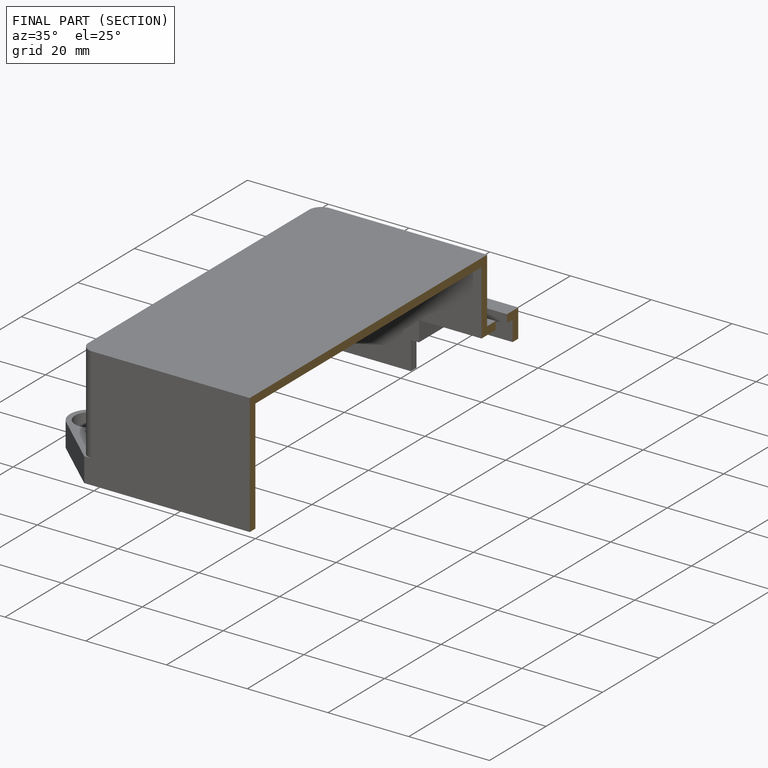
[diagram: finished part — half-section view (interior)]
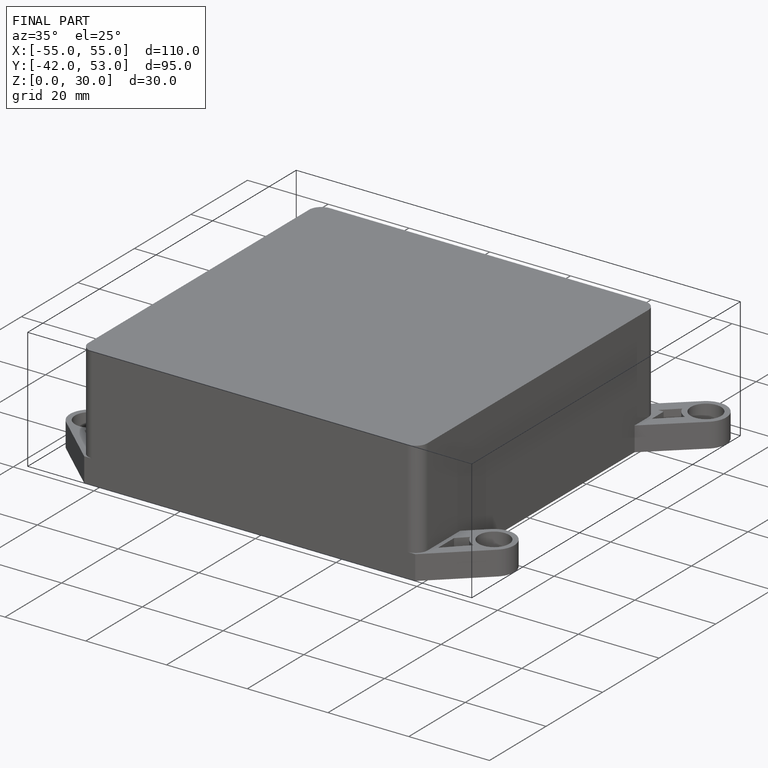
[diagram: finished part — iso view with bounding-box wireframe]
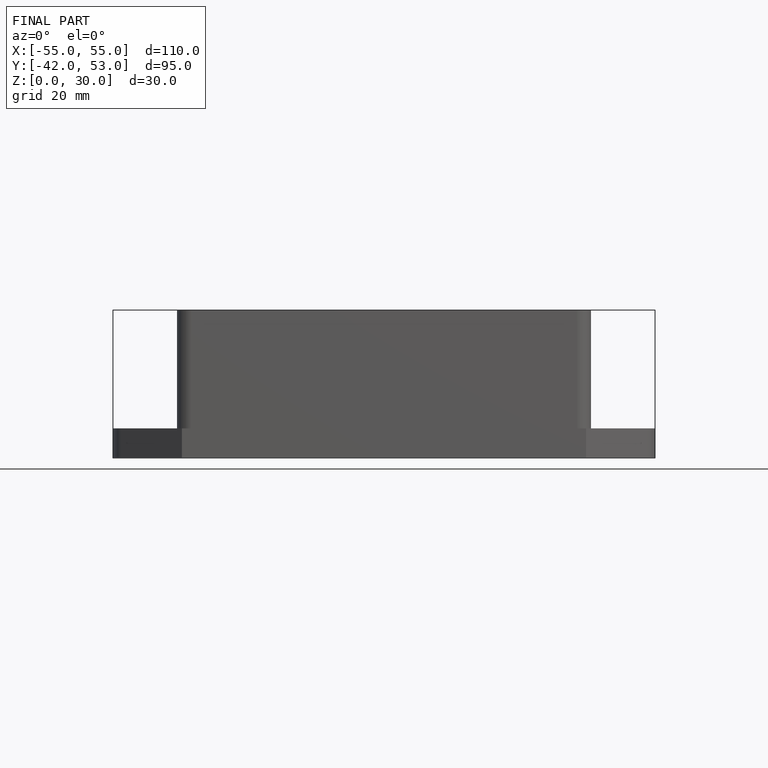
[diagram: finished part — front view with bounding-box wireframe]
